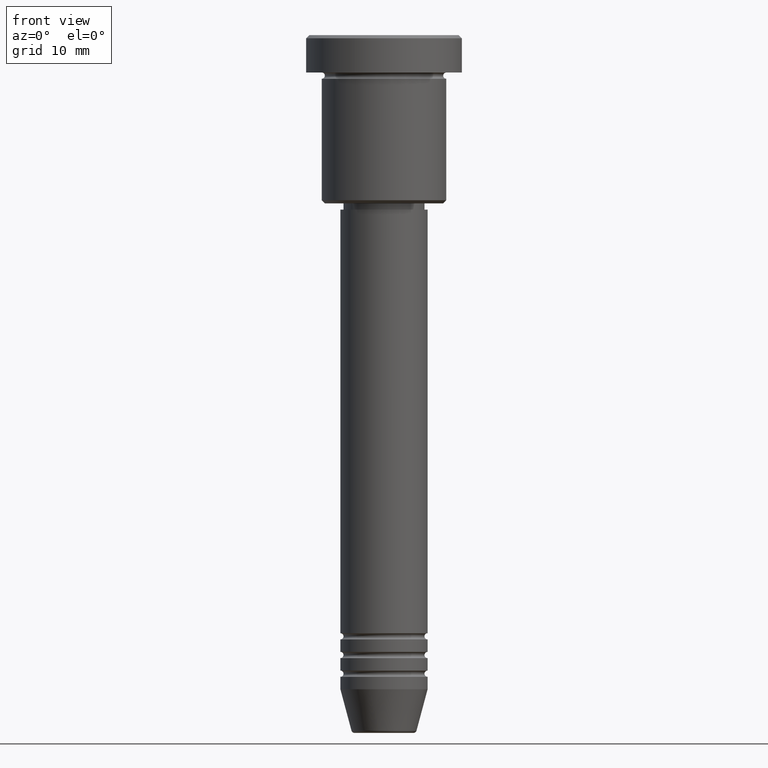
[diagram: clean part render]
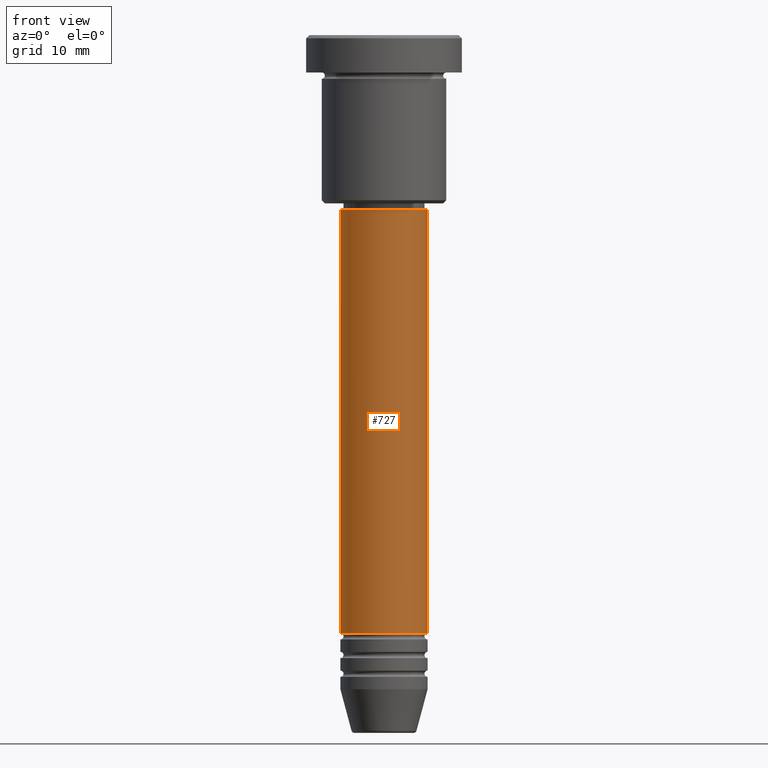
[diagram: same view with one face highlighted and labeled with its STEP entity id]
A machine part, front view. The second image highlights one B-rep face of the part: STEP entity #727.
In plain terms, the highlighted cylindrical surface (partial cylindrical patch) has radius 7 mm, axis along (-0, -0, 1).
Its self-contained STEP definition (entity closure, byte-faithful):
#81 = VECTOR ( 'NONE', #474, 1000.000000000000000 ) ;
#148 = FACE_OUTER_BOUND ( 'NONE', #737, .T. ) ;
#154 = CARTESIAN_POINT ( 'NONE',  ( -7.000000000000000000, 8.572527594031473190E-16, 0.000000000000000000 ) ) ;
#237 = VERTEX_POINT ( 'NONE', #310 ) ;
#273 = VERTEX_POINT ( 'NONE', #567 ) ;
#295 = LINE ( 'NONE', #1104, #81 ) ;
#303 = AXIS2_PLACEMENT_3D ( 'NONE', #406, #785, #337 ) ;
#310 = CARTESIAN_POINT ( 'NONE',  ( -7.000000000000000000, 8.572527594031473190E-16, -28.00000000000000355 ) ) ;
#327 = DIRECTION ( 'NONE',  ( -0.000000000000000000, -0.000000000000000000, 1.000000000000000000 ) ) ;
#329 = VERTEX_POINT ( 'NONE', #754 ) ;
#337 = DIRECTION ( 'NONE',  ( 1.000000000000000000, 0.000000000000000000, 0.000000000000000000 ) ) ;
#339 = DIRECTION ( 'NONE',  ( -0.000000000000000000, -0.000000000000000000, 1.000000000000000000 ) ) ;
#363 = AXIS2_PLACEMENT_3D ( 'NONE', #1123, #327, #499 ) ;
#405 = VERTEX_POINT ( 'NONE', #502 ) ;
#406 = CARTESIAN_POINT ( 'NONE',  ( 0.000000000000000000, 0.000000000000000000, -28.00000000000000355 ) ) ;
#415 = DIRECTION ( 'NONE',  ( -0.000000000000000000, -0.000000000000000000, 1.000000000000000000 ) ) ;
#474 = DIRECTION ( 'NONE',  ( -0.000000000000000000, -0.000000000000000000, 1.000000000000000000 ) ) ;
#499 = DIRECTION ( 'NONE',  ( 1.000000000000000000, 0.000000000000000000, 0.000000000000000000 ) ) ;
#502 = CARTESIAN_POINT ( 'NONE',  ( -7.000000000000000000, 8.572527594031473190E-16, -95.99999999999997158 ) ) ;
#514 = CYLINDRICAL_SURFACE ( 'NONE', #1016, 7.000000000000000000 ) ;
#546 = EDGE_CURVE ( 'NONE', #237, #273, #1002, .T. ) ;
#567 = CARTESIAN_POINT ( 'NONE',  ( 7.000000000000000000, 0.000000000000000000, -28.00000000000000355 ) ) ;
#643 = ORIENTED_EDGE ( 'NONE', *, *, #977, .T. ) ;
#669 = ORIENTED_EDGE ( 'NONE', *, *, #546, .F. ) ;
#679 = LINE ( 'NONE', #154, #791 ) ;
#691 = DIRECTION ( 'NONE',  ( 1.000000000000000000, 0.000000000000000000, 0.000000000000000000 ) ) ;
#700 = EDGE_CURVE ( 'NONE', #405, #237, #679, .T. ) ;
#727 = ADVANCED_FACE ( 'NONE', ( #148 ), #514, .T. ) ;
#737 = EDGE_LOOP ( 'NONE', ( #1018, #1140, #643, #669 ) ) ;
#754 = CARTESIAN_POINT ( 'NONE',  ( 7.000000000000000000, 0.000000000000000000, -95.99999999999997158 ) ) ;
#785 = DIRECTION ( 'NONE',  ( -0.000000000000000000, -0.000000000000000000, 1.000000000000000000 ) ) ;
#791 = VECTOR ( 'NONE', #415, 1000.000000000000000 ) ;
#977 = EDGE_CURVE ( 'NONE', #329, #273, #295, .T. ) ;
#1002 = CIRCLE ( 'NONE', #303, 7.000000000000000000 ) ;
#1016 = AXIS2_PLACEMENT_3D ( 'NONE', #1149, #339, #691 ) ;
#1018 = ORIENTED_EDGE ( 'NONE', *, *, #700, .F. ) ;
#1068 = EDGE_CURVE ( 'NONE', #405, #329, #1097, .T. ) ;
#1097 = CIRCLE ( 'NONE', #363, 7.000000000000000000 ) ;
#1104 = CARTESIAN_POINT ( 'NONE',  ( 7.000000000000000000, 0.000000000000000000, 0.000000000000000000 ) ) ;
#1123 = CARTESIAN_POINT ( 'NONE',  ( 0.000000000000000000, 0.000000000000000000, -95.99999999999997158 ) ) ;
#1140 = ORIENTED_EDGE ( 'NONE', *, *, #1068, .T. ) ;
#1149 = CARTESIAN_POINT ( 'NONE',  ( 0.000000000000000000, 0.000000000000000000, 0.000000000000000000 ) ) ;